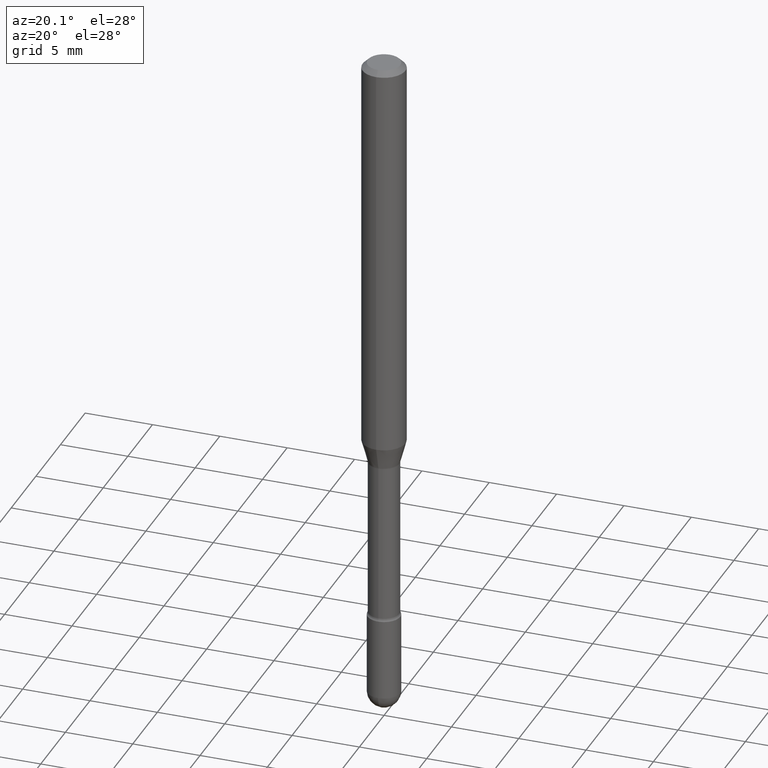
[diagram: clean part render]
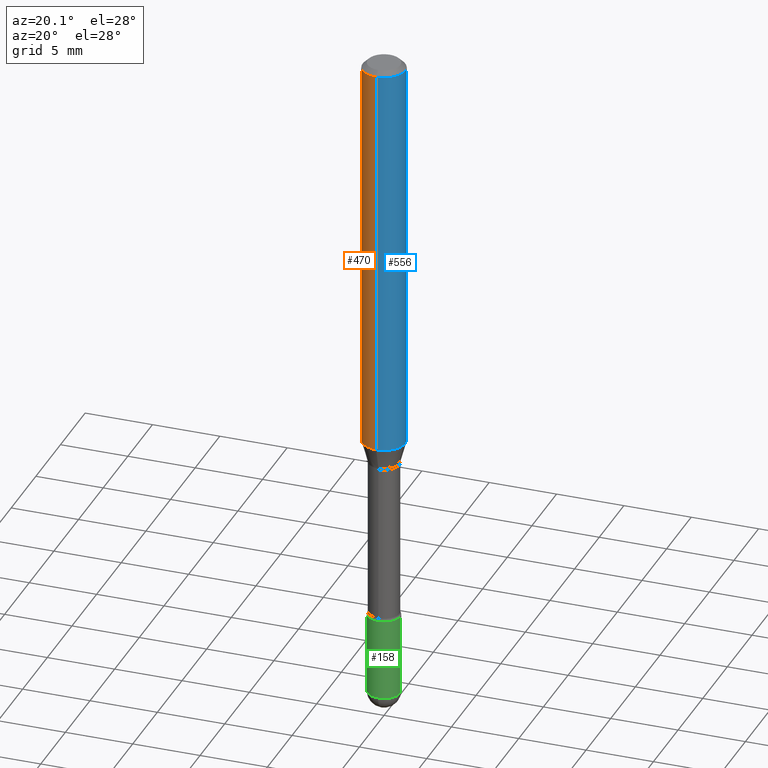
[diagram: same view with three faces highlighted in distinct colors, each labeled with its STEP entity id]
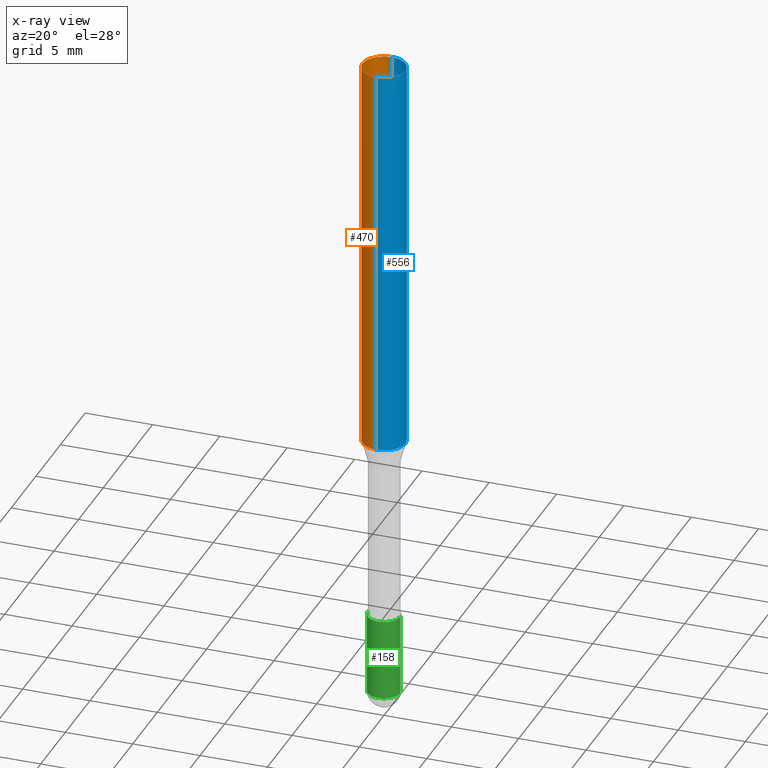
[diagram: x-ray of the same camera — body ghosted, the three highlighted faces saturated]
A machine part, auxiliary view with three faces highlighted in distinct colors.
The next image is the same camera in x-ray (body ghosted, the three faces saturated) — at least one of them is partly hidden behind the body in this view.
Their STEP definitions:

[orange] entity #470 — the highlighted cylindrical surface (edge-blend (fillet) strip) has radius 1.5875 mm, axis along (-0, 0, 1).
#6 = VERTEX_POINT ( 'NONE', #269 ) ;
#24 = VERTEX_POINT ( 'NONE', #539 ) ;
#42 = CARTESIAN_POINT ( 'NONE',  ( -1.169113584055446105E-44, 1.669184350826100908E-30, 4.780733988912460139E-16 ) ) ;
#47 = CARTESIAN_POINT ( 'NONE',  ( 4.440892098500625669E-16, 0.06250000000000000000, 2.598549843541239912E-16 ) ) ;
#61 = DIRECTION ( 'NONE',  ( -2.445459523208563077E-29, 3.491494632593953152E-15, 1.000000000000000000 ) ) ;
#71 = VERTEX_POINT ( 'NONE', #145 ) ;
#85 = DIRECTION ( 'NONE',  ( -2.445459523208563077E-29, 3.491494632593953152E-15, 1.000000000000000000 ) ) ;
#87 = VECTOR ( 'NONE', #85, 39.37007874015748143 ) ;
#114 = DIRECTION ( 'NONE',  ( -2.445459523208563077E-29, 3.491494632593953152E-15, 1.000000000000000000 ) ) ;
#128 = DIRECTION ( 'NONE',  ( -6.982962677686265922E-15, -1.000000000000000000, 3.483106191921935554E-15 ) ) ;
#130 = DIRECTION ( 'NONE',  ( -6.982962677686265922E-15, -1.000000000000000000, 3.491494632593953152E-15 ) ) ;
#133 = VECTOR ( 'NONE', #61, 39.37007874015748143 ) ;
#145 = CARTESIAN_POINT ( 'NONE',  ( 4.440892098500914096E-16, 0.06249999999999995143, -0.01500000000000030129 ) ) ;
#178 = FACE_OUTER_BOUND ( 'NONE', #287, .T. ) ;
#185 = ORIENTED_EDGE ( 'NONE', *, *, #292, .F. ) ;
#200 = DIRECTION ( 'NONE',  ( -2.445459523208563077E-29, 3.491494632593953152E-15, 1.000000000000000000 ) ) ;
#204 = EDGE_CURVE ( 'NONE', #24, #239, #435, .T. ) ;
#239 = VERTEX_POINT ( 'NONE', #326 ) ;
#240 = CIRCLE ( 'NONE', #510, 0.06250000000000000000 ) ;
#269 = CARTESIAN_POINT ( 'NONE',  ( -4.364351673553912750E-16, -0.06250000000000005551, -0.01499999999999986587 ) ) ;
#274 = EDGE_CURVE ( 'NONE', #239, #6, #550, .T. ) ;
#279 = CARTESIAN_POINT ( 'NONE',  ( -4.364351673553916201E-16, -0.06250000000000000000, 6.962918134283680859E-16 ) ) ;
#281 = ORIENTED_EDGE ( 'NONE', *, *, #367, .F. ) ;
#287 = EDGE_LOOP ( 'NONE', ( #281, #458, #426, #185 ) ) ;
#292 = EDGE_CURVE ( 'NONE', #71, #6, #240, .T. ) ;
#297 = AXIS2_PLACEMENT_3D ( 'NONE', #42, #432, #130 ) ;
#326 = CARTESIAN_POINT ( 'NONE',  ( -4.364351673553627281E-16, -0.06250000000000405231, -1.173382893084895295 ) ) ;
#354 = CYLINDRICAL_SURFACE ( 'NONE', #297, 0.06250000000000000000 ) ;
#364 = DIRECTION ( 'NONE',  ( -6.982962677686265922E-15, -1.000000000000000000, 4.370956789862821150E-15 ) ) ;
#367 = EDGE_CURVE ( 'NONE', #24, #71, #400, .T. ) ;
#400 = LINE ( 'NONE', #47, #87 ) ;
#420 = CARTESIAN_POINT ( 'NONE',  ( 3.668189284812864689E-31, -5.237241948890958867E-17, -0.01500000000000008271 ) ) ;
#426 = ORIENTED_EDGE ( 'NONE', *, *, #274, .T. ) ;
#432 = DIRECTION ( 'NONE',  ( -2.445459523208563077E-29, 3.491494632593953152E-15, 1.000000000000000000 ) ) ;
#435 = CIRCLE ( 'NONE', #488, 0.06250000000000000000 ) ;
#458 = ORIENTED_EDGE ( 'NONE', *, *, #204, .T. ) ;
#470 = ADVANCED_FACE ( 'NONE', ( #178 ), #354, .T. ) ;
#488 = AXIS2_PLACEMENT_3D ( 'NONE', #559, #114, #364 ) ;
#510 = AXIS2_PLACEMENT_3D ( 'NONE', #420, #200, #128 ) ;
#539 = CARTESIAN_POINT ( 'NONE',  ( 4.440892098500914096E-16, 0.06249999999999593381, -1.173382893084895962 ) ) ;
#550 = LINE ( 'NONE', #279, #133 ) ;
#559 = CARTESIAN_POINT ( 'NONE',  ( 2.869460370264472986E-29, -4.096860073183477433E-15, -1.173382893084895739 ) ) ;

[blue] entity #556 — the highlighted cylindrical surface (edge-blend (fillet) strip) has radius 1.5875 mm, axis along (-0, 0, 1).
#6 = VERTEX_POINT ( 'NONE', #269 ) ;
#24 = VERTEX_POINT ( 'NONE', #539 ) ;
#47 = CARTESIAN_POINT ( 'NONE',  ( 4.440892098500625669E-16, 0.06250000000000000000, 2.598549843541239912E-16 ) ) ;
#61 = DIRECTION ( 'NONE',  ( -2.445459523208563077E-29, 3.491494632593953152E-15, 1.000000000000000000 ) ) ;
#71 = VERTEX_POINT ( 'NONE', #145 ) ;
#85 = DIRECTION ( 'NONE',  ( -2.445459523208563077E-29, 3.491494632593953152E-15, 1.000000000000000000 ) ) ;
#87 = VECTOR ( 'NONE', #85, 39.37007874015748143 ) ;
#97 = DIRECTION ( 'NONE',  ( -2.445459523208563077E-29, 3.491494632593953152E-15, 1.000000000000000000 ) ) ;
#100 = CARTESIAN_POINT ( 'NONE',  ( -1.169113584055446105E-44, 1.669184350826100908E-30, 4.780733988912460139E-16 ) ) ;
#105 = CARTESIAN_POINT ( 'NONE',  ( 3.668189284812864689E-31, -5.237241948890958867E-17, -0.01500000000000008271 ) ) ;
#109 = ORIENTED_EDGE ( 'NONE', *, *, #546, .T. ) ;
#133 = VECTOR ( 'NONE', #61, 39.37007874015748143 ) ;
#145 = CARTESIAN_POINT ( 'NONE',  ( 4.440892098500914096E-16, 0.06249999999999995143, -0.01500000000000030129 ) ) ;
#159 = DIRECTION ( 'NONE',  ( -6.982962677686265922E-15, -1.000000000000000000, 3.483106191921935554E-15 ) ) ;
#186 = FACE_OUTER_BOUND ( 'NONE', #464, .T. ) ;
#218 = ORIENTED_EDGE ( 'NONE', *, *, #367, .T. ) ;
#229 = CARTESIAN_POINT ( 'NONE',  ( 2.869460370264472986E-29, -4.096860073183477433E-15, -1.173382893084895739 ) ) ;
#231 = EDGE_CURVE ( 'NONE', #6, #71, #562, .T. ) ;
#239 = VERTEX_POINT ( 'NONE', #326 ) ;
#269 = CARTESIAN_POINT ( 'NONE',  ( -4.364351673553912750E-16, -0.06250000000000005551, -0.01499999999999986587 ) ) ;
#271 = DIRECTION ( 'NONE',  ( -6.982962677686265922E-15, -1.000000000000000000, 3.491494632593953152E-15 ) ) ;
#274 = EDGE_CURVE ( 'NONE', #239, #6, #550, .T. ) ;
#277 = AXIS2_PLACEMENT_3D ( 'NONE', #105, #541, #159 ) ;
#279 = CARTESIAN_POINT ( 'NONE',  ( -4.364351673553916201E-16, -0.06250000000000000000, 6.962918134283680859E-16 ) ) ;
#322 = CIRCLE ( 'NONE', #333, 0.06250000000000000000 ) ;
#326 = CARTESIAN_POINT ( 'NONE',  ( -4.364351673553627281E-16, -0.06250000000000405231, -1.173382893084895295 ) ) ;
#333 = AXIS2_PLACEMENT_3D ( 'NONE', #229, #490, #408 ) ;
#367 = EDGE_CURVE ( 'NONE', #24, #71, #400, .T. ) ;
#372 = AXIS2_PLACEMENT_3D ( 'NONE', #100, #97, #271 ) ;
#400 = LINE ( 'NONE', #47, #87 ) ;
#404 = CYLINDRICAL_SURFACE ( 'NONE', #372, 0.06250000000000000000 ) ;
#408 = DIRECTION ( 'NONE',  ( -6.982962677686265922E-15, -1.000000000000000000, 4.370956789862821150E-15 ) ) ;
#460 = ORIENTED_EDGE ( 'NONE', *, *, #274, .F. ) ;
#464 = EDGE_LOOP ( 'NONE', ( #109, #218, #503, #460 ) ) ;
#490 = DIRECTION ( 'NONE',  ( -2.445459523208563077E-29, 3.491494632593953152E-15, 1.000000000000000000 ) ) ;
#503 = ORIENTED_EDGE ( 'NONE', *, *, #231, .F. ) ;
#539 = CARTESIAN_POINT ( 'NONE',  ( 4.440892098500914096E-16, 0.06249999999999593381, -1.173382893084895962 ) ) ;
#541 = DIRECTION ( 'NONE',  ( -2.445459523208563077E-29, 3.491494632593953152E-15, 1.000000000000000000 ) ) ;
#546 = EDGE_CURVE ( 'NONE', #239, #24, #322, .T. ) ;
#550 = LINE ( 'NONE', #279, #133 ) ;
#556 = ADVANCED_FACE ( 'NONE', ( #186 ), #404, .T. ) ;
#562 = CIRCLE ( 'NONE', #277, 0.06250000000000000000 ) ;

[green] entity #158 — the highlighted cylindrical surface (edge-blend (fillet) strip) has radius 1.2065 mm, axis along (-0, 0, 1).
#18 = ORIENTED_EDGE ( 'NONE', *, *, #335, .T. ) ;
#22 = CARTESIAN_POINT ( 'NONE',  ( -0.04750000000000000749, -6.064996105617570464E-15, -1.952499999999999902 ) ) ;
#46 = EDGE_CURVE ( 'NONE', #477, #334, #392, .T. ) ;
#52 = EDGE_CURVE ( 'NONE', #337, #477, #469, .T. ) ;
#63 = EDGE_LOOP ( 'NONE', ( #206, #134, #471, #18, #549 ) ) ;
#64 = CARTESIAN_POINT ( 'NONE',  ( 0.04750000000000000749, -3.316907271900977082E-16, 2.316183968503069432E-30 ) ) ;
#106 = CYLINDRICAL_SURFACE ( 'NONE', #398, 0.04750000000000000749 ) ;
#123 = VERTEX_POINT ( 'NONE', #361 ) ;
#134 = ORIENTED_EDGE ( 'NONE', *, *, #52, .T. ) ;
#139 = AXIS2_PLACEMENT_3D ( 'NONE', #221, #522, #212 ) ;
#158 = ADVANCED_FACE ( 'NONE', ( #272 ), #106, .T. ) ;
#183 = CIRCLE ( 'NONE', #139, 0.04749999999999999362 ) ;
#195 = CARTESIAN_POINT ( 'NONE',  ( 4.774777844076478914E-29, -6.817117314091241226E-15, -1.952499999999999902 ) ) ;
#206 = ORIENTED_EDGE ( 'NONE', *, *, #563, .F. ) ;
#212 = DIRECTION ( 'NONE',  ( 1.000000000000000000, -6.982962677686261977E-15, 0.000000000000000000 ) ) ;
#214 = CARTESIAN_POINT ( 'NONE',  ( -3.375077994859997675E-16, -0.04750000000000682149, -1.952499999999999680 ) ) ;
#221 = CARTESIAN_POINT ( 'NONE',  ( 4.193979002607509757E-29, -5.987890496115994688E-15, -1.715000000000000080 ) ) ;
#228 = VERTEX_POINT ( 'NONE', #538 ) ;
#242 = VECTOR ( 'NONE', #266, 39.37007874015748143 ) ;
#266 = DIRECTION ( 'NONE',  ( -2.445468806185136877E-29, 3.491481338843145188E-15, 1.000000000000000000 ) ) ;
#272 = FACE_OUTER_BOUND ( 'NONE', #63, .T. ) ;
#280 = DIRECTION ( 'NONE',  ( -2.445468806185136597E-29, 3.491481338843145583E-15, 1.000000000000000000 ) ) ;
#283 = CARTESIAN_POINT ( 'NONE',  ( 0.04750000000000000749, -6.734194632293715468E-15, -1.952499999999999902 ) ) ;
#334 = VERTEX_POINT ( 'NONE', #283 ) ;
#335 = EDGE_CURVE ( 'NONE', #334, #228, #456, .T. ) ;
#337 = VERTEX_POINT ( 'NONE', #22 ) ;
#339 = AXIS2_PLACEMENT_3D ( 'NONE', #195, #542, #494 ) ;
#343 = EDGE_CURVE ( 'NONE', #123, #228, #183, .T. ) ;
#344 = VECTOR ( 'NONE', #415, 39.37007874015748143 ) ;
#359 = LINE ( 'NONE', #363, #242 ) ;
#361 = CARTESIAN_POINT ( 'NONE',  ( -0.04749999999999999362, -6.064996105617570464E-15, -1.715000000000000080 ) ) ;
#363 = CARTESIAN_POINT ( 'NONE',  ( -0.04750000000000000749, 3.375077994860476415E-16, -2.336494167871080260E-30 ) ) ;
#374 = DIRECTION ( 'NONE',  ( -2.445468806185136597E-29, 3.491481338843145583E-15, 1.000000000000000000 ) ) ;
#392 = CIRCLE ( 'NONE', #339, 0.04750000000000000749 ) ;
#398 = AXIS2_PLACEMENT_3D ( 'NONE', #446, #280, #454 ) ;
#403 = CARTESIAN_POINT ( 'NONE',  ( 4.774777844076478914E-29, -6.817117314091241226E-15, -1.952499999999999902 ) ) ;
#415 = DIRECTION ( 'NONE',  ( -2.445468806185136877E-29, 3.491481338843145188E-15, 1.000000000000000000 ) ) ;
#446 = CARTESIAN_POINT ( 'NONE',  ( 0.000000000000000000, 0.000000000000000000, 0.000000000000000000 ) ) ;
#454 = DIRECTION ( 'NONE',  ( 1.000000000000000000, -6.982962677686266711E-15, 4.876176775795934672E-29 ) ) ;
#456 = LINE ( 'NONE', #64, #344 ) ;
#457 = DIRECTION ( 'NONE',  ( 1.000000000000000000, -6.982962677686260400E-15, 0.000000000000000000 ) ) ;
#469 = CIRCLE ( 'NONE', #560, 0.04750000000000000749 ) ;
#471 = ORIENTED_EDGE ( 'NONE', *, *, #46, .T. ) ;
#477 = VERTEX_POINT ( 'NONE', #214 ) ;
#494 = DIRECTION ( 'NONE',  ( 1.000000000000000000, -6.982962677686260400E-15, 0.000000000000000000 ) ) ;
#522 = DIRECTION ( 'NONE',  ( -2.445468806185136597E-29, 3.491481338843145583E-15, 1.000000000000000000 ) ) ;
#538 = CARTESIAN_POINT ( 'NONE',  ( 0.04749999999999999362, -6.319581223306092199E-15, -1.715000000000000080 ) ) ;
#542 = DIRECTION ( 'NONE',  ( -2.445468806185136597E-29, 3.491481338843145583E-15, 1.000000000000000000 ) ) ;
#549 = ORIENTED_EDGE ( 'NONE', *, *, #343, .F. ) ;
#560 = AXIS2_PLACEMENT_3D ( 'NONE', #403, #374, #457 ) ;
#563 = EDGE_CURVE ( 'NONE', #337, #123, #359, .T. ) ;